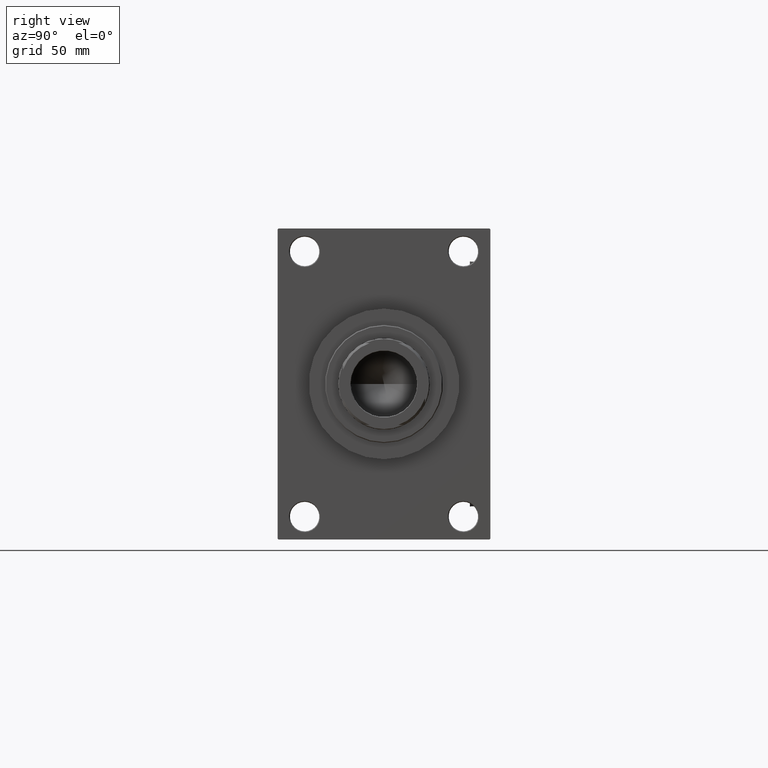
[diagram: clean part render]
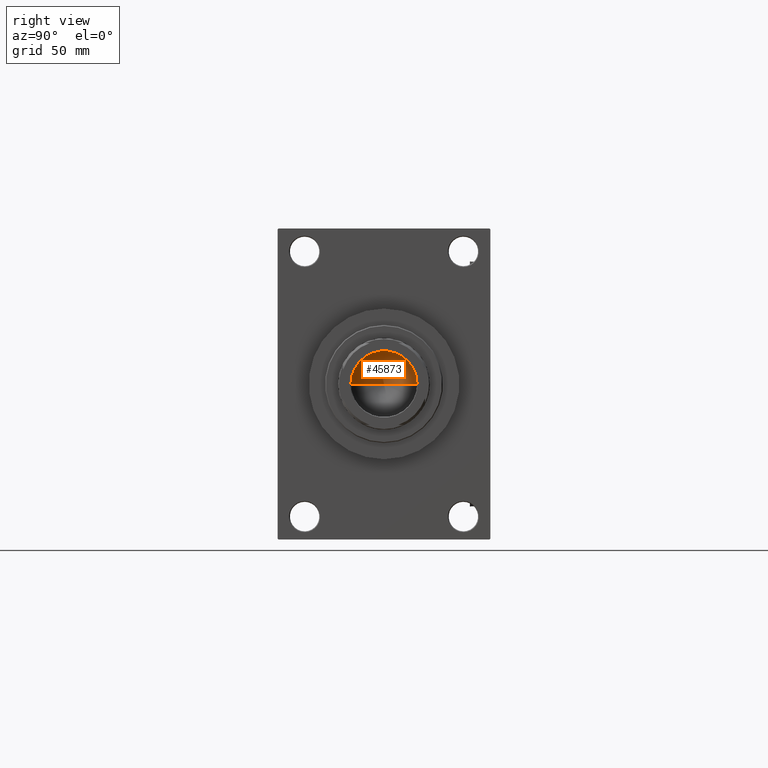
[diagram: same view with one face highlighted and labeled with its STEP entity id]
A machine part, right view. The second image highlights one B-rep face of the part: STEP entity #45873.
In plain terms, the highlighted conical surface has half-angle 59 deg.
Its self-contained STEP definition (entity closure, byte-faithful):
#2642 = CARTESIAN_POINT ( 'NONE',  ( 0.000000000000000000, 0.000000000000000000, 257.0000000000000000 ) ) ;
#3087 = CONICAL_SURFACE ( 'NONE', #13616, 20.24999999999998934, 1.029744258676652313 ) ;
#3644 = VECTOR ( 'NONE', #25825, 1000.000000000000000 ) ;
#4116 = ORIENTED_EDGE ( 'NONE', *, *, #38843, .F. ) ;
#9169 = EDGE_LOOP ( 'NONE', ( #4116, #47598, #33638 ) ) ;
#11062 = VERTEX_POINT ( 'NONE', #15489 ) ;
#13616 = AXIS2_PLACEMENT_3D ( 'NONE', #2642, #48865, #45085 ) ;
#15489 = CARTESIAN_POINT ( 'NONE',  ( -1.584115414415908206E-14, 0.000000000000000000, 244.8325724646918786 ) ) ;
#21806 = CARTESIAN_POINT ( 'NONE',  ( -20.24999999999998934, 2.479909768273389117E-15, 257.0000000000000000 ) ) ;
#25221 = CARTESIAN_POINT ( 'NONE',  ( -20.24999999999998934, 2.479909768273389117E-15, 257.0000000000000000 ) ) ;
#25825 = DIRECTION ( 'NONE',  ( 0.8571673007021112234, 0.000000000000000000, 0.5150380749100560429 ) ) ;
#26580 = LINE ( 'NONE', #49523, #3644 ) ;
#29823 = VERTEX_POINT ( 'NONE', #37883 ) ;
#30119 = EDGE_CURVE ( 'NONE', #39429, #29823, #46253, .T. ) ;
#33638 = ORIENTED_EDGE ( 'NONE', *, *, #30119, .T. ) ;
#34218 = DIRECTION ( 'NONE',  ( 1.000000000000000000, 0.000000000000000000, 0.000000000000000000 ) ) ;
#37213 = DIRECTION ( 'NONE',  ( -0.8571673007021112234, 1.049727191138617340E-16, 0.5150380749100560429 ) ) ;
#37698 = LINE ( 'NONE', #21806, #48894 ) ;
#37883 = CARTESIAN_POINT ( 'NONE',  ( 20.24999999999998934, 0.000000000000000000, 257.0000000000000000 ) ) ;
#38843 = EDGE_CURVE ( 'NONE', #11062, #29823, #26580, .T. ) ;
#39429 = VERTEX_POINT ( 'NONE', #25221 ) ;
#40771 = EDGE_CURVE ( 'NONE', #11062, #39429, #37698, .T. ) ;
#41059 = FACE_OUTER_BOUND ( 'NONE', #9169, .T. ) ;
#44629 = AXIS2_PLACEMENT_3D ( 'NONE', #45819, #44823, #34218 ) ;
#44823 = DIRECTION ( 'NONE',  ( -0.000000000000000000, -0.000000000000000000, 1.000000000000000000 ) ) ;
#45085 = DIRECTION ( 'NONE',  ( 1.000000000000000000, 0.000000000000000000, 0.000000000000000000 ) ) ;
#45819 = CARTESIAN_POINT ( 'NONE',  ( 0.000000000000000000, 0.000000000000000000, 257.0000000000000000 ) ) ;
#45873 = ADVANCED_FACE ( 'NONE', ( #41059 ), #3087, .F. ) ;
#46253 = CIRCLE ( 'NONE', #44629, 20.24999999999998934 ) ;
#47598 = ORIENTED_EDGE ( 'NONE', *, *, #40771, .T. ) ;
#48865 = DIRECTION ( 'NONE',  ( -0.000000000000000000, -0.000000000000000000, 1.000000000000000000 ) ) ;
#48894 = VECTOR ( 'NONE', #37213, 1000.000000000000000 ) ;
#49523 = CARTESIAN_POINT ( 'NONE',  ( 20.24999999999998934, 0.000000000000000000, 257.0000000000000000 ) ) ;